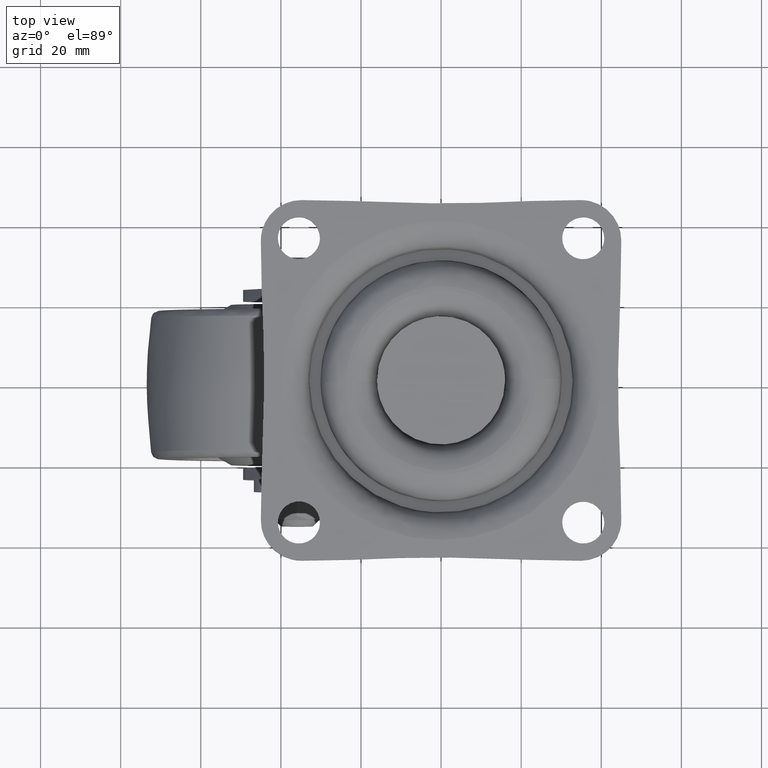
[diagram: clean part render]
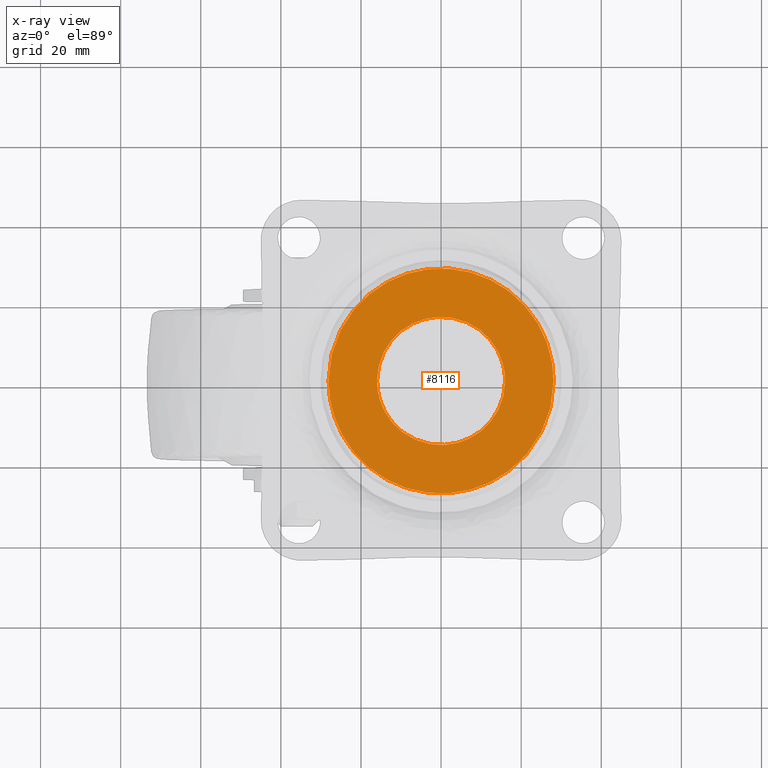
[diagram: x-ray — body ghosted, one internal face saturated and labeled with its STEP entity id]
A machine part, top view, then the same camera in x-ray: the body is ghosted and one INTERNAL B-rep face — a face not visible from any outside direction — is saturated and labeled: STEP entity #8116.
In plain terms, the highlighted face is a freeform B-spline surface patch.
Its self-contained STEP definition (entity closure, byte-faithful):
#7805=CARTESIAN_POINT('',(0.976776632634758,-15.970156774745160,-10.517287000000000));
#7806=VERTEX_POINT('',#7805);
#7812=CARTESIAN_POINT('',(16.0,0.0,-10.517287000000000));
#7813=VERTEX_POINT('',#7812);
#7814=CARTESIAN_POINT('',(16.0,0.0,-10.517287000000000));
#7815=CARTESIAN_POINT('',(16.000000000000007,-15.051297070418370,-10.517287000000001));
#7816=CARTESIAN_POINT('',(0.976776632634756,-15.970156774745158,-10.517287000000000));
#7824=(BOUNDED_CURVE()B_SPLINE_CURVE(2,(#7814,#7815,#7816),.UNSPECIFIED.,.F.,.U.)B_SPLINE_CURVE_WITH_KNOTS((3,3),(0.500000000000000,0.739332962241136),.UNSPECIFIED.)CURVE()GEOMETRIC_REPRESENTATION_ITEM()RATIONAL_B_SPLINE_CURVE((1.0,0.719603993284141,0.976072041671418))REPRESENTATION_ITEM(''));
#7825=EDGE_CURVE('',#7813,#7806,#7824,.T.);
#7827=CARTESIAN_POINT('',(-0.976776632634761,15.970156774745160,-10.517287000000000));
#7828=VERTEX_POINT('',#7827);
#7829=CARTESIAN_POINT('',(-0.976776632634762,15.970156774745162,-10.517287000000001));
#7830=CARTESIAN_POINT('',(-0.488844212816056,16.000000000000007,-10.517287000000001));
#7831=CARTESIAN_POINT('',(0.0,16.0,-10.517287000000000));
#7832=CARTESIAN_POINT('',(15.999999999999998,15.999999999999998,-10.517287000000000));
#7833=CARTESIAN_POINT('',(16.0,0.0,-10.517287000000000));
#7841=(BOUNDED_CURVE()B_SPLINE_CURVE(2,(#7829,#7830,#7831,#7832,#7833),.UNSPECIFIED.,.F.,.U.)B_SPLINE_CURVE_WITH_KNOTS((3,2,3),(0.239332962241136,0.250000000000000,0.500000000000000),.UNSPECIFIED.)CURVE()GEOMETRIC_REPRESENTATION_ITEM()RATIONAL_B_SPLINE_CURVE((0.976072041671417,0.987502787902407,1.0,0.707106781186548,1.0))REPRESENTATION_ITEM(''));
#7842=EDGE_CURVE('',#7828,#7813,#7841,.T.);
#7886=CARTESIAN_POINT('',(-16.0,0.0,-10.517287000000000));
#7887=VERTEX_POINT('',#7886);
#7888=CARTESIAN_POINT('',(-16.0,0.0,-10.517287000000000));
#7889=CARTESIAN_POINT('',(-16.000000000000004,15.051297070418368,-10.517287000000000));
#7890=CARTESIAN_POINT('',(-0.976776632634762,15.970156774745162,-10.517287000000001));
#7898=(BOUNDED_CURVE()B_SPLINE_CURVE(2,(#7888,#7889,#7890),.UNSPECIFIED.,.F.,.U.)B_SPLINE_CURVE_WITH_KNOTS((3,3),(0.0,0.239332962241136),.UNSPECIFIED.)CURVE()GEOMETRIC_REPRESENTATION_ITEM()RATIONAL_B_SPLINE_CURVE((1.0,0.719603993284141,0.976072041671417))REPRESENTATION_ITEM(''));
#7899=EDGE_CURVE('',#7887,#7828,#7898,.T.);
#7901=CARTESIAN_POINT('',(0.976776632634756,-15.970156774745158,-10.517287000000000));
#7902=CARTESIAN_POINT('',(0.488844212816053,-16.000000000000004,-10.517287000000001));
#7903=CARTESIAN_POINT('',(0.0,-16.0,-10.517287000000000));
#7904=CARTESIAN_POINT('',(-15.999999999999998,-15.999999999999998,-10.517287000000000));
#7905=CARTESIAN_POINT('',(-16.0,0.0,-10.517287000000000));
#7913=(BOUNDED_CURVE()B_SPLINE_CURVE(2,(#7901,#7902,#7903,#7904,#7905),.UNSPECIFIED.,.F.,.U.)B_SPLINE_CURVE_WITH_KNOTS((3,2,3),(0.739332962241136,0.750000000000000,1.0),.UNSPECIFIED.)CURVE()GEOMETRIC_REPRESENTATION_ITEM()RATIONAL_B_SPLINE_CURVE((0.976072041671418,0.987502787902407,1.0,0.707106781186548,1.0))REPRESENTATION_ITEM(''));
#7914=EDGE_CURVE('',#7806,#7887,#7913,.T.);
#8013=CARTESIAN_POINT('',(30.914342720104528,-30.909559392821329,-10.517287000000000));
#8014=CARTESIAN_POINT('',(-30.914344227854890,-30.909559392821329,-10.517287000000000));
#8015=CARTESIAN_POINT('',(30.914342720104528,30.909560395717548,-10.517287000000000));
#8016=CARTESIAN_POINT('',(-30.914344227854890,30.909560395717548,-10.517287000000000));
#8017=B_SPLINE_SURFACE_WITH_KNOTS('',1,1,((#8013,#8015),(#8014,#8016)),.UNSPECIFIED.,.F.,.F.,.U.,(2,2),(2,2),(0.0,61.828686947959419),(0.0,61.819119788538870),.UNSPECIFIED.);
#8018=CARTESIAN_POINT('',(-27.732291611938081,-4.571161998092757,-10.517287000122399));
#8019=VERTEX_POINT('',#8018);
#8020=CARTESIAN_POINT('',(-28.106503163065991,0.0,-10.517286999999961));
#8021=VERTEX_POINT('',#8020);
#8022=CARTESIAN_POINT('',(-27.732291611938077,-4.571161998092758,-10.517287000122401));
#8023=CARTESIAN_POINT('',(-28.106503163126895,-2.300898142165324,-10.517287000061174));
#8024=CARTESIAN_POINT('',(-28.106503163065991,0.0,-10.517286999999961));
#8032=(BOUNDED_CURVE()B_SPLINE_CURVE(2,(#8022,#8023,#8024),.UNSPECIFIED.,.F.,.U.)B_SPLINE_CURVE_WITH_KNOTS((3,3),(0.972006108798945,1.0),.UNSPECIFIED.)CURVE()GEOMETRIC_REPRESENTATION_ITEM()RATIONAL_B_SPLINE_CURVE((0.941751131922819,0.967203116396038,1.0))REPRESENTATION_ITEM(''));
#8033=EDGE_CURVE('',#8019,#8021,#8032,.T.);
#8034=ORIENTED_EDGE('',*,*,#8033,.F.);
#8035=CARTESIAN_POINT('',(28.106503163065948,0.0,-10.517287000000000));
#8036=VERTEX_POINT('',#8035);
#8037=CARTESIAN_POINT('',(28.106503163065948,0.0,-10.517287000000000));
#8038=CARTESIAN_POINT('',(28.106686568962228,-1.689419848988978,-10.517287000000289));
#8039=CARTESIAN_POINT('',(27.864965574607840,-4.359705912777904,-10.517287000001350));
#8040=CARTESIAN_POINT('',(26.996701577322259,-8.023685737252297,-10.517287000003799));
#8041=CARTESIAN_POINT('',(25.931304628747590,-11.005250417097511,-10.517287000006830));
#8042=CARTESIAN_POINT('',(24.454357495775540,-13.989745357096661,-10.517287000010240));
#8043=CARTESIAN_POINT('',(22.334001156569538,-17.235019956783329,-10.517287000015960));
#8044=CARTESIAN_POINT('',(19.752221030379680,-20.136761831623790,-10.517287000021170));
#8045=CARTESIAN_POINT('',(16.741581680006821,-22.663528391349899,-10.517287000029009));
#8046=CARTESIAN_POINT('',(13.444463374061860,-24.805609069486682,-10.517287000036720));
#8047=CARTESIAN_POINT('',(9.855897125731431,-26.429175798917321,-10.517287000043851));
#8048=CARTESIAN_POINT('',(6.392711982469058,-27.422831562407119,-10.517287000053070));
#8049=CARTESIAN_POINT('',(3.222938181836099,-27.982488938800280,-10.517287000058580));
#8050=CARTESIAN_POINT('',(-0.320604065503912,-28.200135089532679,-10.517287000067009));
#8051=CARTESIAN_POINT('',(-3.752386427992909,-27.920860849788369,-10.517287000074401));
#8052=CARTESIAN_POINT('',(-6.907793556564274,-27.289271978626211,-10.517287000081140));
#8053=CARTESIAN_POINT('',(-10.094877613098920,-26.326178860235778,-10.517287000087849));
#8054=CARTESIAN_POINT('',(-13.971185038150089,-24.547509327044981,-10.517287000096010));
#8055=CARTESIAN_POINT('',(-17.489482962272291,-22.131285787778630,-10.517287000103231));
#8056=CARTESIAN_POINT('',(-20.051843169457481,-19.757142021122970,-10.517287000108380));
#8057=CARTESIAN_POINT('',(-22.192134119884091,-17.354077831699080,-10.517287000112610));
#8058=CARTESIAN_POINT('',(-23.948617166583372,-14.847711133174171,-10.517287000116010));
#8059=CARTESIAN_POINT('',(-25.460850301393730,-12.006224148490601,-10.517287000118740));
#8060=CARTESIAN_POINT('',(-26.798675829125742,-8.780566253727271,-10.517287000121270));
#8061=CARTESIAN_POINT('',(-27.457692985572610,-6.238108995944622,-10.517287000121630));
#8062=CARTESIAN_POINT('',(-27.732291611938081,-4.571161998092757,-10.517287000122399));
#8063=B_SPLINE_CURVE_WITH_KNOTS('',3,(#8037,#8038,#8039,#8040,#8041,#8042,#8043,#8044,#8045,#8046,#8047,#8048,#8049,#8050,#8051,#8052,#8053,#8054,#8055,#8056,#8057,#8058,#8059,#8060,#8061,#8062),.UNSPECIFIED.,.F.,.U.,(4,1,1,1,1,1,1,1,1,1,1,1,1,1,1,1,1,1,1,1,1,1,1,4),(0.000000066885974,5.068220308122236,8.011082521067166,11.280886034242640,14.550764351936911,17.984085147365558,22.888847174741610,26.158681477586391,29.755509379372501,34.660265761290347,37.930136912706807,40.545957943080353,44.306234898505913,48.557003051889787,50.845882026372337,53.952231083409622,58.530015520665792,63.598267584860103,66.704613018754984,68.993496537736178,73.244297300449773,75.860173245595860,78.639539201273365,83.707744306387369),.UNSPECIFIED.);
#8064=EDGE_CURVE('',#8036,#8019,#8063,.T.);
#8065=ORIENTED_EDGE('',*,*,#8064,.F.);
#8066=CARTESIAN_POINT('',(27.732291611938081,4.571161998092755,-10.517287000122399));
#8067=VERTEX_POINT('',#8066);
#8068=CARTESIAN_POINT('',(27.732291611938077,4.571161998092755,-10.517287000122401));
#8069=CARTESIAN_POINT('',(28.106503163126874,2.300898142165323,-10.517287000061206));
#8070=CARTESIAN_POINT('',(28.106503163065948,0.0,-10.517287000000000));
#8078=(BOUNDED_CURVE()B_SPLINE_CURVE(2,(#8068,#8069,#8070),.UNSPECIFIED.,.F.,.U.)B_SPLINE_CURVE_WITH_KNOTS((3,3),(0.472006108798945,0.500000000000000),.UNSPECIFIED.)CURVE()GEOMETRIC_REPRESENTATION_ITEM()RATIONAL_B_SPLINE_CURVE((0.941751131922819,0.967203116396038,1.0))REPRESENTATION_ITEM(''));
#8079=EDGE_CURVE('',#8067,#8036,#8078,.T.);
#8080=ORIENTED_EDGE('',*,*,#8079,.F.);
#8081=CARTESIAN_POINT('',(-28.106503163065991,0.0,-10.517286999999961));
#8082=CARTESIAN_POINT('',(-28.106697313152619,1.689421314586455,-10.517287000000261));
#8083=CARTESIAN_POINT('',(-27.864952461027539,4.359702575632092,-10.517287000001280));
#8084=CARTESIAN_POINT('',(-26.971527860610859,8.129898009872132,-10.517287000003860));
#8085=CARTESIAN_POINT('',(-25.627112580081690,11.824771432511840,-10.517287000007521));
#8086=CARTESIAN_POINT('',(-23.584211280527281,15.510997819852321,-10.517287000012420));
#8087=CARTESIAN_POINT('',(-21.019233928799189,18.774807500258330,-10.517287000018920));
#8088=CARTESIAN_POINT('',(-18.449341736327192,21.300889559966670,-10.517287000024670));
#8089=CARTESIAN_POINT('',(-15.453638096210909,23.586451881733272,-10.517287000031709));
#8090=CARTESIAN_POINT('',(-11.642382203949440,25.729149907865061,-10.517287000040220));
#8091=CARTESIAN_POINT('',(-7.261704964585286,27.295729198078199,-10.517287000050731));
#8092=CARTESIAN_POINT('',(-3.168314108379177,28.005993192101819,-10.517287000058261));
#8093=CARTESIAN_POINT('',(0.756495726179506,28.178275626255409,-10.517287000068620));
#8094=CARTESIAN_POINT('',(4.896288564116109,27.817330708331731,-10.517287000076150));
#8095=CARTESIAN_POINT('',(9.022450790436478,26.725812043247750,-10.517287000086471));
#8096=CARTESIAN_POINT('',(12.284473061869360,25.330946395117259,-10.517287000091240));
#8097=CARTESIAN_POINT('',(14.961000712101070,23.858639829296528,-10.517287000098580));
#8098=CARTESIAN_POINT('',(18.003672009983880,21.729880375774790,-10.517287000104000));
#8099=CARTESIAN_POINT('',(21.083567989196659,18.775107008948041,-10.517287000110580));
#8100=CARTESIAN_POINT('',(23.639851111419919,15.364745698862880,-10.517287000115290));
#8101=CARTESIAN_POINT('',(25.335468356229079,12.308654877791939,-10.517287000118570));
#8102=CARTESIAN_POINT('',(26.798661413927089,8.780560484389229,-10.517287000121570));
#8103=CARTESIAN_POINT('',(27.457697490474089,6.238110839180722,-10.517287000121270));
#8104=CARTESIAN_POINT('',(27.732291611938081,4.571161998092755,-10.517287000122399));
#8105=B_SPLINE_CURVE_WITH_KNOTS('',3,(#8081,#8082,#8083,#8084,#8085,#8086,#8087,#8088,#8089,#8090,#8091,#8092,#8093,#8094,#8095,#8096,#8097,#8098,#8099,#8100,#8101,#8102,#8103,#8104),.UNSPECIFIED.,.F.,.U.,(4,1,1,1,1,1,1,1,1,1,1,1,1,1,1,1,1,1,1,1,1,4),(0.000000066861475,5.068220308099754,8.011082521046049,11.607911024050450,16.839643720273742,20.599953560387750,24.033293797842049,27.630127240564558,31.880927715008649,37.112679812742961,41.526943225648630,44.306234898499113,48.884018732723042,53.952231083406758,57.058591986690082,59.510977893846913,63.107785367917288,68.176039047742066,72.263334759086689,75.860173245595945,78.639539201273507,83.707744306387355),.UNSPECIFIED.);
#8106=EDGE_CURVE('',#8021,#8067,#8105,.T.);
#8107=ORIENTED_EDGE('',*,*,#8106,.F.);
#8108=EDGE_LOOP('',(#8034,#8065,#8080,#8107));
#8109=FACE_OUTER_BOUND('',#8108,.T.);
#8110=ORIENTED_EDGE('',*,*,#7825,.T.);
#8111=ORIENTED_EDGE('',*,*,#7914,.T.);
#8112=ORIENTED_EDGE('',*,*,#7899,.T.);
#8113=ORIENTED_EDGE('',*,*,#7842,.T.);
#8114=EDGE_LOOP('',(#8110,#8111,#8112,#8113));
#8115=FACE_BOUND('',#8114,.T.);
#8116=ADVANCED_FACE('',(#8109,#8115),#8017,.F.);